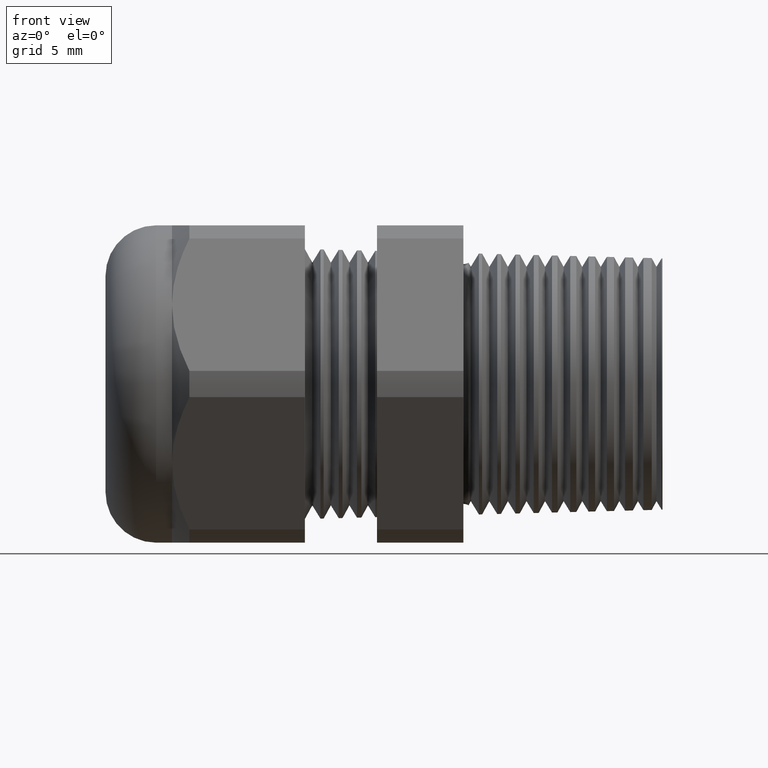
[diagram: clean part render]
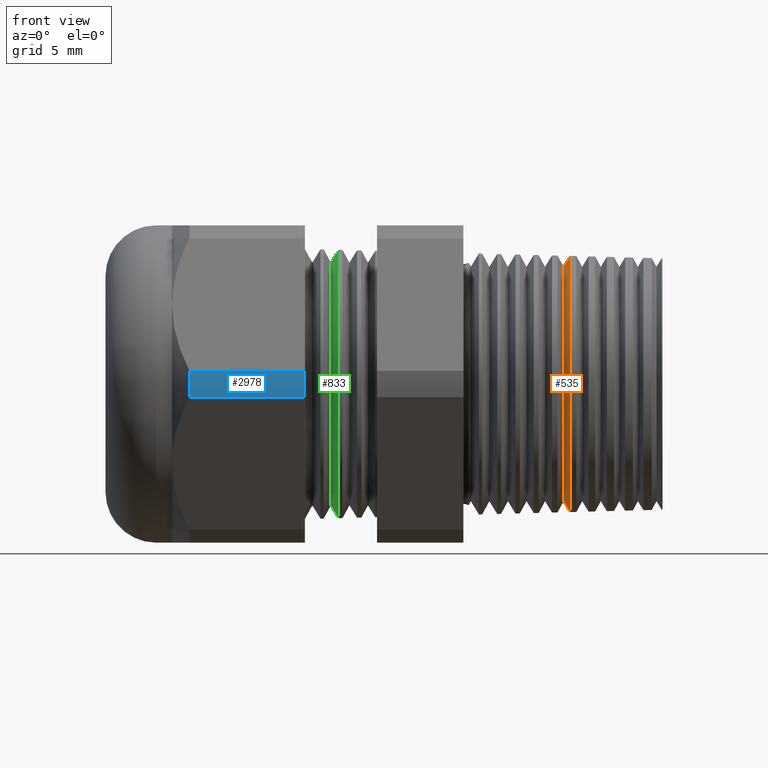
[diagram: same view with three faces highlighted in distinct colors, each labeled with its STEP entity id]
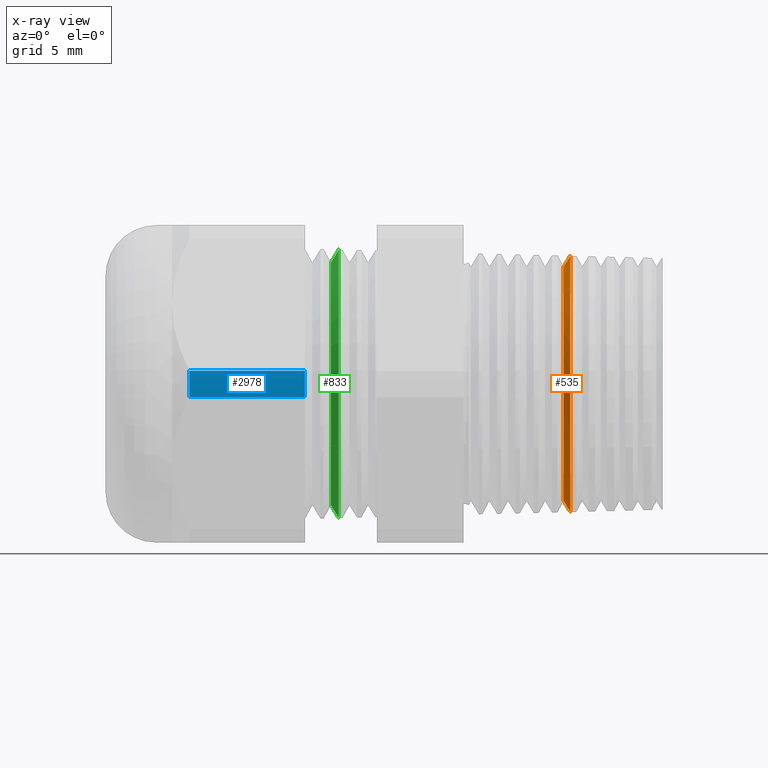
[diagram: x-ray of the same camera — body ghosted, the three highlighted faces saturated]
A machine part, front view with three faces highlighted in distinct colors.
The next image is the same camera in x-ray (body ghosted, the three faces saturated) — at least one of them is partly hidden behind the body in this view.
Their STEP definitions:

[orange] entity #535 — the highlighted conical surface has half-angle 58.5 deg.
#217 = EDGE_CURVE ( 'NONE', #353, #408, #1460, .T. ) ;
#297 = EDGE_CURVE ( 'NONE', #356, #408, #1618, .T. ) ;
#348 = EDGE_CURVE ( 'NONE', #351, #353, #1710, .T. ) ;
#351 = VERTEX_POINT ( 'NONE', #1704 ) ;
#353 = VERTEX_POINT ( 'NONE', #1698 ) ;
#356 = VERTEX_POINT ( 'NONE', #1693 ) ;
#408 = VERTEX_POINT ( 'NONE', #1789 ) ;
#532 = EDGE_CURVE ( 'NONE', #356, #351, #1985, .T. ) ;
#535 = ADVANCED_FACE ( 'NONE', ( #2038 ), #2037, .T. ) ;
#589 = EDGE_LOOP ( 'NONE', ( #590, #591, #592, #593 ) ) ;
#590 = ORIENTED_EDGE ( 'NONE', *, *, #297, .F. ) ;
#591 = ORIENTED_EDGE ( 'NONE', *, *, #532, .T. ) ;
#592 = ORIENTED_EDGE ( 'NONE', *, *, #348, .T. ) ;
#593 = ORIENTED_EDGE ( 'NONE', *, *, #217, .T. ) ;
#1456 = DIRECTION ( 'NONE',  ( 0.0000000000000000000, 0.0000000000000000000, -1.000000000000000000 ) ) ;
#1457 = DIRECTION ( 'NONE',  ( -1.000000000000000000, 0.0000000000000000000, 0.0000000000000000000 ) ) ;
#1458 = CARTESIAN_POINT ( 'NONE',  ( 0.006829030549054509100, 0.0000000000000000000, 0.0000000000000000000 ) ) ;
#1459 = AXIS2_PLACEMENT_3D ( 'NONE', #1458, #1457, #1456 ) ;
#1460 = CIRCLE ( 'NONE', #1459, 0.3794105899028056300 ) ;
#1610 = DIRECTION ( 'NONE',  ( 0.5224985647159446900, 1.044183048100715400E-016, 0.8526401643540947300 ) ) ;
#1611 = VECTOR ( 'NONE', #1610, 39.37007874015748100 ) ;
#1612 = CARTESIAN_POINT ( 'NONE',  ( -0.01296098090543437700, 4.250947754979527400E-017, 0.3471162263224958400 ) ) ;
#1618 = LINE ( 'NONE', #1612, #1611 ) ;
#1693 = CARTESIAN_POINT ( 'NONE',  ( -0.01296098090543437700, 0.0000000000000000000, 0.3471162263224958400 ) ) ;
#1698 = CARTESIAN_POINT ( 'NONE',  ( 0.006829030549054509100, 4.646439644870799600E-017, -0.3794105899028056300 ) ) ;
#1704 = CARTESIAN_POINT ( 'NONE',  ( -0.01296098090543437700, 4.454764708065922700E-017, -0.3471162263224958400 ) ) ;
#1707 = DIRECTION ( 'NONE',  ( 0.5224985647159446900, 0.0000000000000000000, -0.8526401643540947300 ) ) ;
#1708 = VECTOR ( 'NONE', #1707, 39.37007874015748100 ) ;
#1709 = CARTESIAN_POINT ( 'NONE',  ( -0.01296098090543437700, 0.0000000000000000000, -0.3471162263224958400 ) ) ;
#1710 = LINE ( 'NONE', #1709, #1708 ) ;
#1789 = CARTESIAN_POINT ( 'NONE',  ( 0.006829030549054509100, 0.0000000000000000000, 0.3794105899028056300 ) ) ;
#1985 = CIRCLE ( 'NONE', #2042, 0.3471162263224958400 ) ;
#2032 = DIRECTION ( 'NONE',  ( 0.0000000000000000000, 0.0000000000000000000, -1.000000000000000000 ) ) ;
#2033 = DIRECTION ( 'NONE',  ( 1.000000000000000000, 0.0000000000000000000, 0.0000000000000000000 ) ) ;
#2034 = CARTESIAN_POINT ( 'NONE',  ( -0.01296098090543437700, 0.0000000000000000000, 0.0000000000000000000 ) ) ;
#2035 = AXIS2_PLACEMENT_3D ( 'NONE', #2034, #2033, #2032 ) ;
#2037 = CONICAL_SURFACE ( 'NONE', #2035, 0.3471162263224958400, 1.021017612416687600 ) ;
#2038 = FACE_OUTER_BOUND ( 'NONE', #589, .T. ) ;
#2039 = DIRECTION ( 'NONE',  ( 0.0000000000000000000, 0.0000000000000000000, -1.000000000000000000 ) ) ;
#2040 = DIRECTION ( 'NONE',  ( 1.000000000000000000, 0.0000000000000000000, 0.0000000000000000000 ) ) ;
#2041 = CARTESIAN_POINT ( 'NONE',  ( -0.01296098090543437700, 0.0000000000000000000, 0.0000000000000000000 ) ) ;
#2042 = AXIS2_PLACEMENT_3D ( 'NONE', #2041, #2040, #2039 ) ;

[blue] entity #2978 — the highlighted cylindrical surface (partial cylindrical patch) has radius 13.2512 mm, axis along (-1, 0, 0).
#2695 = CARTESIAN_POINT ( 'NONE',  ( -1.121449606299212300, 0.0000000000000000000, 0.0000000000000000000 ) ) ;
#2739 = CARTESIAN_POINT ( 'NONE',  ( -1.121449606299212300, -0.5202473208008777700, -0.03890520787129506100 ) ) ;
#2750 = DIRECTION ( 'NONE',  ( 0.0000000000000000000, 0.0000000000000000000, -1.000000000000000000 ) ) ;
#2751 = DIRECTION ( 'NONE',  ( 1.000000000000000000, 0.0000000000000000000, 0.0000000000000000000 ) ) ;
#2752 = AXIS2_PLACEMENT_3D ( 'NONE', #2695, #2751, #2750 ) ;
#2753 = CIRCLE ( 'NONE', #2752, 0.5217000000000000500 ) ;
#2845 = ORIENTED_EDGE ( 'NONE', *, *, #2846, .T. ) ;
#2846 = EDGE_CURVE ( 'NONE', #2953, #2856, #2753, .T. ) ;
#2848 = ORIENTED_EDGE ( 'NONE', *, *, #2949, .T. ) ;
#2851 = EDGE_LOOP ( 'NONE', ( #2848, #2845, #2987, #2985 ) ) ;
#2856 = VERTEX_POINT ( 'NONE', #2739 ) ;
#2947 = VERTEX_POINT ( 'NONE', #3345 ) ;
#2949 = EDGE_CURVE ( 'NONE', #2947, #2953, #3344, .T. ) ;
#2953 = VERTEX_POINT ( 'NONE', #3391 ) ;
#2977 = EDGE_CURVE ( 'NONE', #2947, #2989, #3398, .T. ) ;
#2978 = ADVANCED_FACE ( 'NONE', ( #3393 ), #3392, .T. ) ;
#2985 = ORIENTED_EDGE ( 'NONE', *, *, #2977, .F. ) ;
#2987 = ORIENTED_EDGE ( 'NONE', *, *, #2990, .F. ) ;
#2989 = VERTEX_POINT ( 'NONE', #3445 ) ;
#2990 = EDGE_CURVE ( 'NONE', #2989, #2856, #3444, .T. ) ;
#3341 = DIRECTION ( 'NONE',  ( -1.000000000000000000, 0.0000000000000000000, 0.0000000000000000000 ) ) ;
#3342 = VECTOR ( 'NONE', #3341, 39.37007874015748100 ) ;
#3343 = CARTESIAN_POINT ( 'NONE',  ( 0.2800000000000000300, -0.5202473208008777700, 0.03890520787129464500 ) ) ;
#3344 = LINE ( 'NONE', #3343, #3342 ) ;
#3345 = CARTESIAN_POINT ( 'NONE',  ( -0.7794488188976376200, -0.5202473208008777700, 0.03890520787129464500 ) ) ;
#3391 = CARTESIAN_POINT ( 'NONE',  ( -1.121449606299212300, -0.5202473208008777700, 0.03890520787129464500 ) ) ;
#3392 = CYLINDRICAL_SURFACE ( 'NONE', #3456, 0.5217000000000000500 ) ;
#3393 = FACE_OUTER_BOUND ( 'NONE', #2851, .T. ) ;
#3394 = DIRECTION ( 'NONE',  ( 0.0000000000000000000, 0.0000000000000000000, -1.000000000000000000 ) ) ;
#3395 = DIRECTION ( 'NONE',  ( 1.000000000000000000, 0.0000000000000000000, 0.0000000000000000000 ) ) ;
#3396 = CARTESIAN_POINT ( 'NONE',  ( -0.7794488188976376200, 0.0000000000000000000, 0.0000000000000000000 ) ) ;
#3397 = AXIS2_PLACEMENT_3D ( 'NONE', #3396, #3395, #3394 ) ;
#3398 = CIRCLE ( 'NONE', #3397, 0.5217000000000000500 ) ;
#3441 = DIRECTION ( 'NONE',  ( -1.000000000000000000, 0.0000000000000000000, 0.0000000000000000000 ) ) ;
#3442 = VECTOR ( 'NONE', #3441, 39.37007874015748100 ) ;
#3443 = CARTESIAN_POINT ( 'NONE',  ( 0.2800000000000000300, -0.5202473208008777700, -0.03890520787129508900 ) ) ;
#3444 = LINE ( 'NONE', #3443, #3442 ) ;
#3445 = CARTESIAN_POINT ( 'NONE',  ( -0.7794488188976376200, -0.5202473208008777700, -0.03890520787129508900 ) ) ;
#3453 = DIRECTION ( 'NONE',  ( 0.0000000000000000000, 0.0000000000000000000, 1.000000000000000000 ) ) ;
#3454 = DIRECTION ( 'NONE',  ( -1.000000000000000000, 0.0000000000000000000, 0.0000000000000000000 ) ) ;
#3455 = CARTESIAN_POINT ( 'NONE',  ( 0.2800000000000000300, 0.0000000000000000000, 0.0000000000000000000 ) ) ;
#3456 = AXIS2_PLACEMENT_3D ( 'NONE', #3455, #3454, #3453 ) ;

[green] entity #833 — the highlighted conical surface has half-angle 58.5 deg.
#68 = EDGE_CURVE ( 'NONE', #3044, #73, #1152, .T. ) ;
#73 = VERTEX_POINT ( 'NONE', #1137 ) ;
#74 = EDGE_CURVE ( 'NONE', #3034, #75, #1136, .T. ) ;
#75 = VERTEX_POINT ( 'NONE', #1132 ) ;
#814 = ORIENTED_EDGE ( 'NONE', *, *, #68, .T. ) ;
#815 = ORIENTED_EDGE ( 'NONE', *, *, #832, .T. ) ;
#832 = EDGE_CURVE ( 'NONE', #73, #75, #2472, .T. ) ;
#833 = ADVANCED_FACE ( 'NONE', ( #2468 ), #2467, .T. ) ;
#834 = EDGE_LOOP ( 'NONE', ( #835, #836, #814, #815 ) ) ;
#835 = ORIENTED_EDGE ( 'NONE', *, *, #74, .F. ) ;
#836 = ORIENTED_EDGE ( 'NONE', *, *, #837, .T. ) ;
#837 = EDGE_CURVE ( 'NONE', #3034, #3044, #2528, .T. ) ;
#1132 = CARTESIAN_POINT ( 'NONE',  ( -0.6791452575448179200, 0.0000000000000000000, 0.3973734588093056900 ) ) ;
#1133 = DIRECTION ( 'NONE',  ( 0.5224985647159371400, 1.044183048100721000E-016, 0.8526401643540993900 ) ) ;
#1134 = VECTOR ( 'NONE', #1133, 39.37007874015748100 ) ;
#1135 = CARTESIAN_POINT ( 'NONE',  ( -0.7024097998030715000, 4.401492973092350100E-017, 0.3594091762748933800 ) ) ;
#1136 = LINE ( 'NONE', #1135, #1134 ) ;
#1137 = CARTESIAN_POINT ( 'NONE',  ( -0.6791452575448179200, 4.866421343969287700E-017, -0.3973734588093056900 ) ) ;
#1149 = DIRECTION ( 'NONE',  ( 0.5224985647159371400, 0.0000000000000000000, -0.8526401643540993900 ) ) ;
#1150 = VECTOR ( 'NONE', #1149, 39.37007874015748100 ) ;
#1151 = CARTESIAN_POINT ( 'NONE',  ( -0.7024097998030715000, 0.0000000000000000000, -0.3594091762748933800 ) ) ;
#1152 = LINE ( 'NONE', #1151, #1150 ) ;
#2463 = DIRECTION ( 'NONE',  ( 0.0000000000000000000, 0.0000000000000000000, -1.000000000000000000 ) ) ;
#2464 = DIRECTION ( 'NONE',  ( 1.000000000000000000, 0.0000000000000000000, 0.0000000000000000000 ) ) ;
#2465 = CARTESIAN_POINT ( 'NONE',  ( -0.7024097998030715000, 0.0000000000000000000, 0.0000000000000000000 ) ) ;
#2466 = AXIS2_PLACEMENT_3D ( 'NONE', #2465, #2464, #2463 ) ;
#2467 = CONICAL_SURFACE ( 'NONE', #2466, 0.3594091762748933800, 1.021017612416696500 ) ;
#2468 = FACE_OUTER_BOUND ( 'NONE', #834, .T. ) ;
#2469 = DIRECTION ( 'NONE',  ( 0.0000000000000000000, 0.0000000000000000000, -1.000000000000000000 ) ) ;
#2470 = DIRECTION ( 'NONE',  ( -1.000000000000000000, 0.0000000000000000000, 0.0000000000000000000 ) ) ;
#2471 = AXIS2_PLACEMENT_3D ( 'NONE', #2477, #2470, #2469 ) ;
#2472 = CIRCLE ( 'NONE', #2471, 0.3973734588093056900 ) ;
#2477 = CARTESIAN_POINT ( 'NONE',  ( -0.6791452575448179200, 0.0000000000000000000, 0.0000000000000000000 ) ) ;
#2524 = DIRECTION ( 'NONE',  ( 0.0000000000000000000, 0.0000000000000000000, -1.000000000000000000 ) ) ;
#2525 = DIRECTION ( 'NONE',  ( 1.000000000000000000, 0.0000000000000000000, 0.0000000000000000000 ) ) ;
#2526 = CARTESIAN_POINT ( 'NONE',  ( -0.7024097998030715000, 0.0000000000000000000, 0.0000000000000000000 ) ) ;
#2527 = AXIS2_PLACEMENT_3D ( 'NONE', #2526, #2525, #2524 ) ;
#2528 = CIRCLE ( 'NONE', #2527, 0.3594091762748933800 ) ;
#3034 = VERTEX_POINT ( 'NONE', #3491 ) ;
#3044 = VERTEX_POINT ( 'NONE', #3540 ) ;
#3491 = CARTESIAN_POINT ( 'NONE',  ( -0.7024097998030715000, 4.633957158530819500E-017, 0.3594091762748933800 ) ) ;
#3540 = CARTESIAN_POINT ( 'NONE',  ( -0.7024097998030715000, 0.0000000000000000000, -0.3594091762748933800 ) ) ;